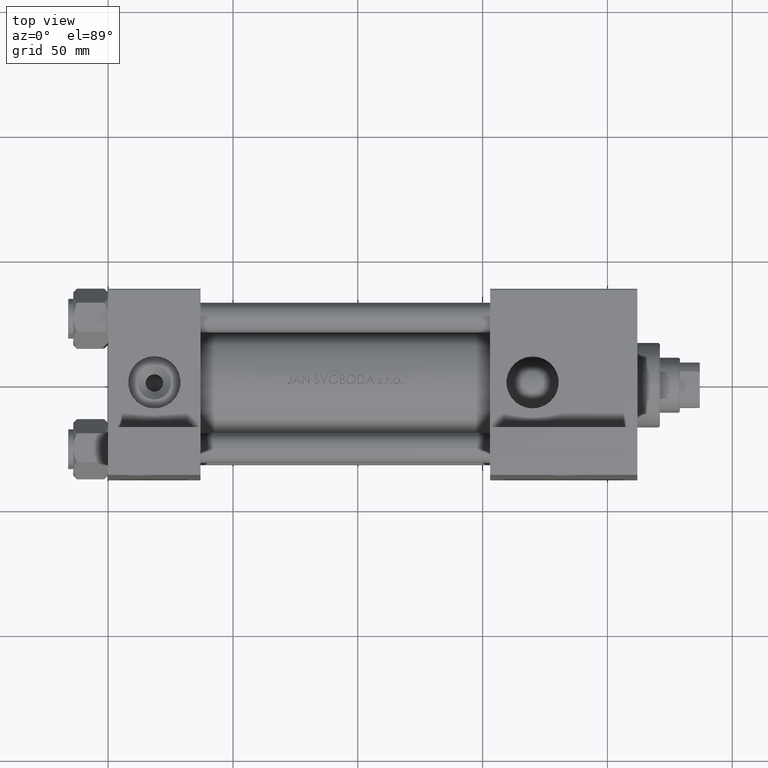
[diagram: clean part render]
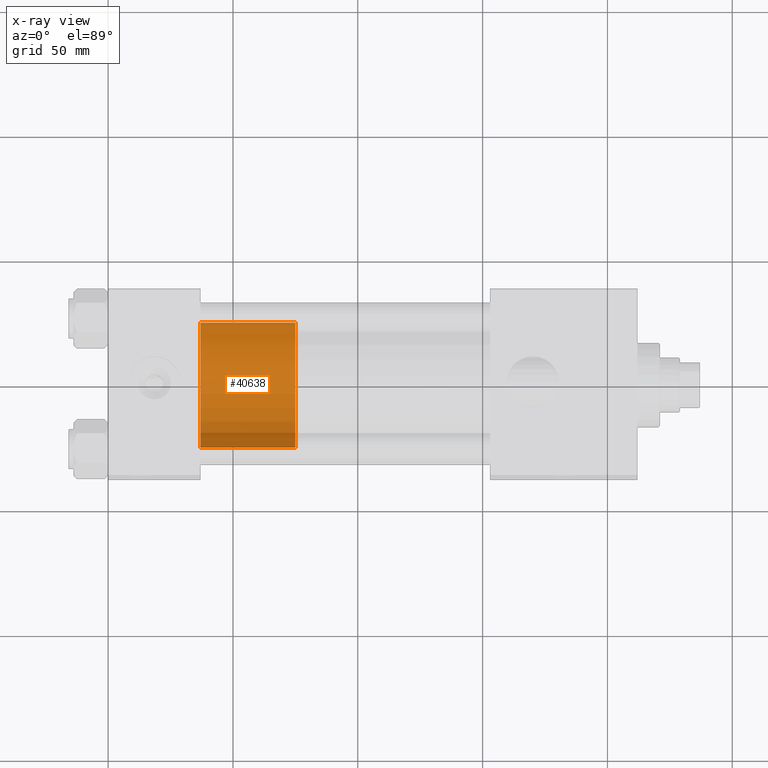
[diagram: x-ray — body ghosted, one internal face saturated and labeled with its STEP entity id]
A machine part, top view, then the same camera in x-ray: the body is ghosted and one INTERNAL B-rep face — a face not visible from any outside direction — is saturated and labeled: STEP entity #40638.
In plain terms, the highlighted cylindrical surface (partial cylindrical patch) has radius 25 mm, axis along (-1, 0, 0).
Its self-contained STEP definition (entity closure, byte-faithful):
#29 = ORIENTED_EDGE ( 'NONE', *, *, #23512, .F. ) ;
#722 = CARTESIAN_POINT ( 'NONE',  ( -25.00000000000000000, 0.000000000000000000, 0.000000000000000000 ) ) ;
#1216 = LINE ( 'NONE', #23137, #33895 ) ;
#1218 = EDGE_CURVE ( 'NONE', #23480, #6374, #1216, .T. ) ;
#1398 = AXIS2_PLACEMENT_3D ( 'NONE', #45598, #45347, #15179 ) ;
#4107 = ORIENTED_EDGE ( 'NONE', *, *, #1218, .T. ) ;
#6374 = VERTEX_POINT ( 'NONE', #41520 ) ;
#8622 = AXIS2_PLACEMENT_3D ( 'NONE', #13793, #13053, #40439 ) ;
#11913 = CARTESIAN_POINT ( 'NONE',  ( -25.00000000000000000, 0.000000000000000000, 38.00000000000000000 ) ) ;
#13053 = DIRECTION ( 'NONE',  ( -0.000000000000000000, -0.000000000000000000, -1.000000000000000000 ) ) ;
#13496 = DIRECTION ( 'NONE',  ( -0.000000000000000000, -0.000000000000000000, -1.000000000000000000 ) ) ;
#13793 = CARTESIAN_POINT ( 'NONE',  ( 0.000000000000000000, 0.000000000000000000, 38.00000000000000000 ) ) ;
#15179 = DIRECTION ( 'NONE',  ( 1.000000000000000000, 0.000000000000000000, 0.000000000000000000 ) ) ;
#15457 = CARTESIAN_POINT ( 'NONE',  ( 0.000000000000000000, 0.000000000000000000, 38.00000000000000000 ) ) ;
#15693 = CIRCLE ( 'NONE', #1398, 25.00000000000000000 ) ;
#16374 = DIRECTION ( 'NONE',  ( -0.000000000000000000, -0.000000000000000000, -1.000000000000000000 ) ) ;
#16653 = VERTEX_POINT ( 'NONE', #11913 ) ;
#17951 = CARTESIAN_POINT ( 'NONE',  ( -25.00000000000000000, 0.000000000000000000, 38.00000000000000000 ) ) ;
#18850 = EDGE_LOOP ( 'NONE', ( #29, #4107, #42742, #42678 ) ) ;
#20901 = AXIS2_PLACEMENT_3D ( 'NONE', #15457, #34895, #45882 ) ;
#23137 = CARTESIAN_POINT ( 'NONE',  ( 25.00000000000000000, 3.061616997868383043E-15, 38.00000000000000000 ) ) ;
#23480 = VERTEX_POINT ( 'NONE', #25213 ) ;
#23512 = EDGE_CURVE ( 'NONE', #23480, #16653, #42390, .T. ) ;
#25213 = CARTESIAN_POINT ( 'NONE',  ( 25.00000000000000000, 3.061616997868383043E-15, 38.00000000000000000 ) ) ;
#27216 = VERTEX_POINT ( 'NONE', #722 ) ;
#28470 = CYLINDRICAL_SURFACE ( 'NONE', #8622, 25.00000000000000000 ) ;
#31130 = EDGE_CURVE ( 'NONE', #16653, #27216, #44882, .T. ) ;
#33895 = VECTOR ( 'NONE', #16374, 1000.000000000000000 ) ;
#34742 = EDGE_CURVE ( 'NONE', #6374, #27216, #15693, .T. ) ;
#34895 = DIRECTION ( 'NONE',  ( 0.000000000000000000, 0.000000000000000000, 1.000000000000000000 ) ) ;
#35723 = FACE_OUTER_BOUND ( 'NONE', #18850, .T. ) ;
#40439 = DIRECTION ( 'NONE',  ( -1.000000000000000000, 0.000000000000000000, 0.000000000000000000 ) ) ;
#40638 = ADVANCED_FACE ( 'NONE', ( #35723 ), #28470, .T. ) ;
#41520 = CARTESIAN_POINT ( 'NONE',  ( 25.00000000000000000, 3.061616997868383043E-15, 0.000000000000000000 ) ) ;
#42390 = CIRCLE ( 'NONE', #20901, 25.00000000000000000 ) ;
#42678 = ORIENTED_EDGE ( 'NONE', *, *, #31130, .F. ) ;
#42742 = ORIENTED_EDGE ( 'NONE', *, *, #34742, .T. ) ;
#43450 = VECTOR ( 'NONE', #13496, 1000.000000000000000 ) ;
#44882 = LINE ( 'NONE', #17951, #43450 ) ;
#45347 = DIRECTION ( 'NONE',  ( 0.000000000000000000, 0.000000000000000000, 1.000000000000000000 ) ) ;
#45598 = CARTESIAN_POINT ( 'NONE',  ( 0.000000000000000000, 0.000000000000000000, 0.000000000000000000 ) ) ;
#45882 = DIRECTION ( 'NONE',  ( 1.000000000000000000, 0.000000000000000000, 0.000000000000000000 ) ) ;